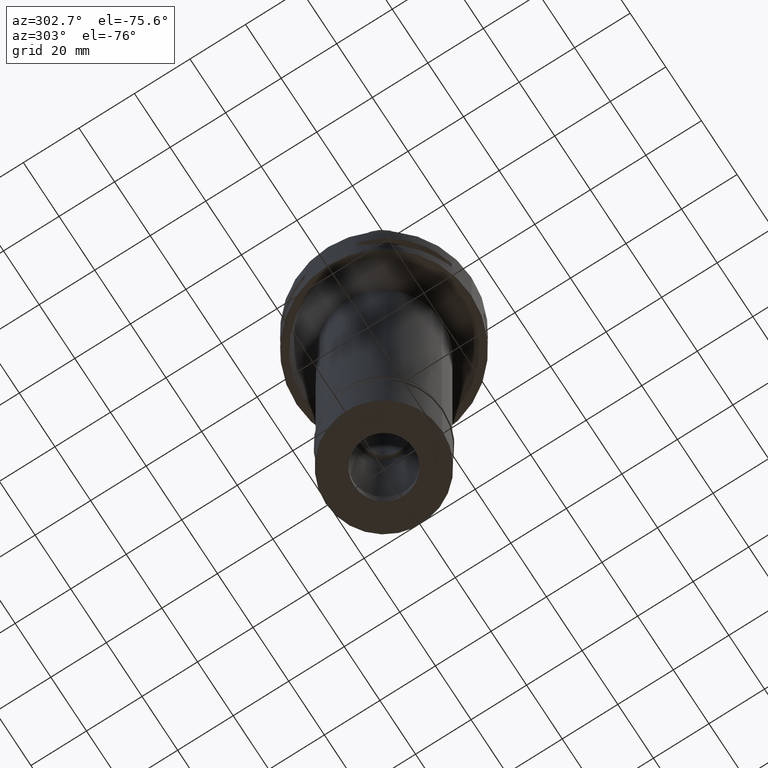
[diagram: clean part render]
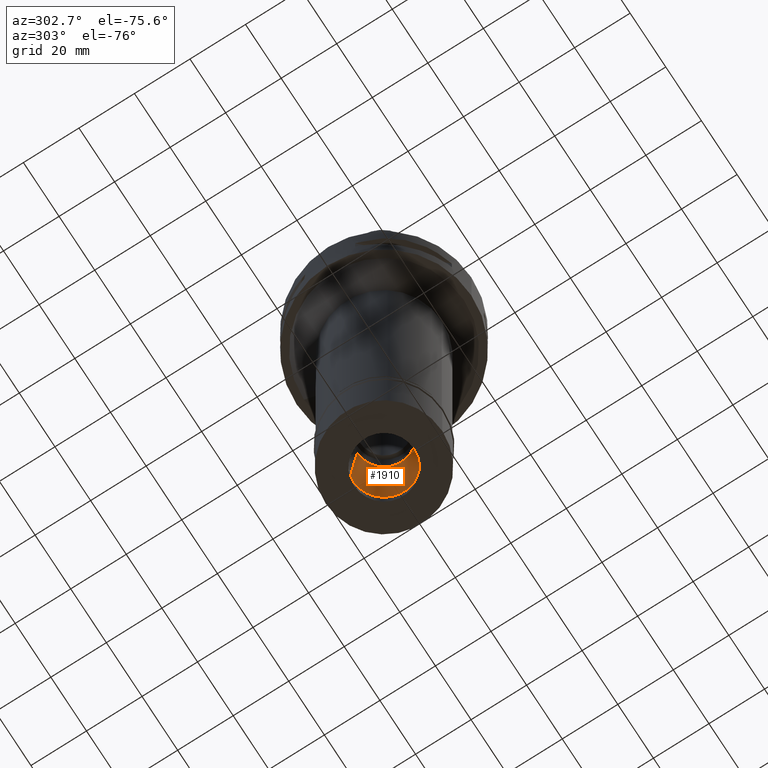
[diagram: same view with one face highlighted and labeled with its STEP entity id]
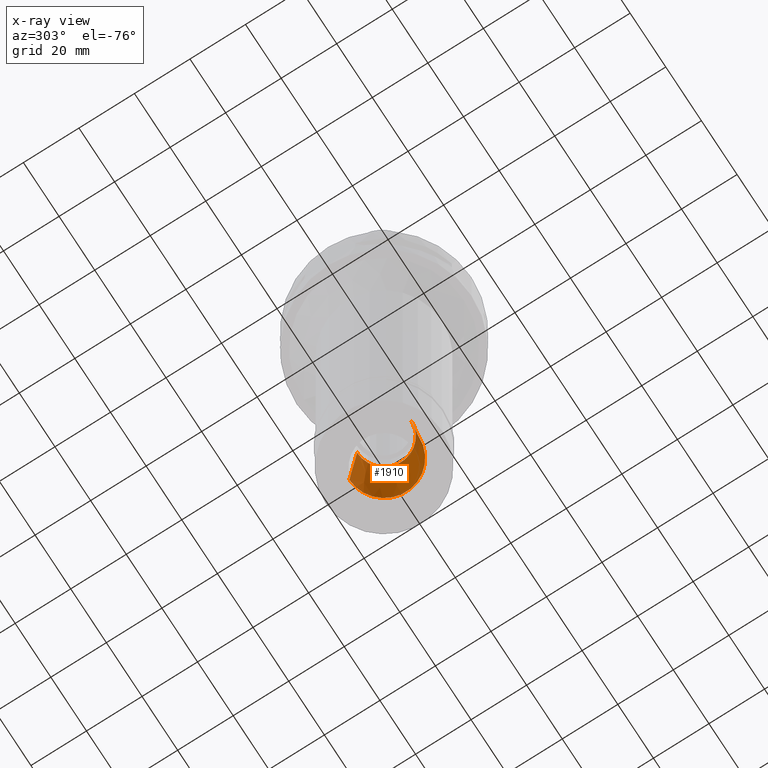
[diagram: x-ray of the same camera — body ghosted, the highlighted face saturated]
A machine part, auxiliary view. The second image highlights one B-rep face of the part: STEP entity #1910.
The next image is the same camera in x-ray: the body ghosted, the highlighted face saturated — about 3% of this face is hidden behind the body in this view.
In plain terms, the highlighted conical surface has half-angle 6 deg.
Its self-contained STEP definition (entity closure, byte-faithful):
#65 = DIRECTION ( 'NONE',  ( 0.0000000000000000000, 0.1045284632676965891, 0.9945218953682687379 ) ) ;
#82 = CIRCLE ( 'NONE', #2624, 9.662185647822997936 ) ;
#96 = CARTESIAN_POINT ( 'NONE',  ( 0.0000000000000000000, -12.50000000000000000, -154.0000000000000000 ) ) ;
#595 = ORIENTED_EDGE ( 'NONE', *, *, #3123, .F. ) ;
#597 = VERTEX_POINT ( 'NONE', #3147 ) ;
#842 = ORIENTED_EDGE ( 'NONE', *, *, #1574, .T. ) ;
#851 = LINE ( 'NONE', #96, #3506 ) ;
#974 = CARTESIAN_POINT ( 'NONE',  ( 0.0000000000000000000, 9.662185647824998114, -127.0000000000000000 ) ) ;
#985 = VERTEX_POINT ( 'NONE', #4515 ) ;
#1220 = AXIS2_PLACEMENT_3D ( 'NONE', #4819, #1786, #1718 ) ;
#1242 = ORIENTED_EDGE ( 'NONE', *, *, #1604, .T. ) ;
#1376 = DIRECTION ( 'NONE',  ( 0.0000000000000000000, 0.0000000000000000000, 1.000000000000000000 ) ) ;
#1379 = CARTESIAN_POINT ( 'NONE',  ( 0.0000000000000000000, 12.50000000000000000, -154.0000000000000000 ) ) ;
#1574 = EDGE_CURVE ( 'NONE', #985, #597, #3766, .T. ) ;
#1604 = EDGE_CURVE ( 'NONE', #3332, #2693, #82, .T. ) ;
#1651 = ORIENTED_EDGE ( 'NONE', *, *, #4166, .T. ) ;
#1682 = CONICAL_SURFACE ( 'NONE', #4384, 11.08109282390999972, 0.1047197551196402399 ) ;
#1718 = DIRECTION ( 'NONE',  ( 0.0000000000000000000, 1.000000000000000000, 0.0000000000000000000 ) ) ;
#1786 = DIRECTION ( 'NONE',  ( 0.0000000000000000000, 0.0000000000000000000, -1.000000000000000000 ) ) ;
#1910 = ADVANCED_FACE ( 'NONE', ( #2147 ), #1682, .F. ) ;
#2059 = EDGE_LOOP ( 'NONE', ( #842, #1651, #1242, #595 ) ) ;
#2147 = FACE_OUTER_BOUND ( 'NONE', #2059, .T. ) ;
#2152 = DIRECTION ( 'NONE',  ( 0.0000000000000000000, -1.000000000000000000, 0.0000000000000000000 ) ) ;
#2624 = AXIS2_PLACEMENT_3D ( 'NONE', #3296, #1376, #2152 ) ;
#2625 = CARTESIAN_POINT ( 'NONE',  ( 0.0000000000000000000, -9.662185647824998114, -127.0000000000000000 ) ) ;
#2693 = VERTEX_POINT ( 'NONE', #974 ) ;
#2848 = DIRECTION ( 'NONE',  ( 0.0000000000000000000, -1.000000000000000000, 0.0000000000000000000 ) ) ;
#3123 = EDGE_CURVE ( 'NONE', #985, #2693, #3228, .T. ) ;
#3147 = CARTESIAN_POINT ( 'NONE',  ( 0.0000000000000000000, -12.50000000000000000, -154.0000000000000000 ) ) ;
#3175 = DIRECTION ( 'NONE',  ( 0.0000000000000000000, -0.1045284632676965891, 0.9945218953682687379 ) ) ;
#3228 = LINE ( 'NONE', #1379, #3973 ) ;
#3296 = CARTESIAN_POINT ( 'NONE',  ( 0.0000000000000000000, -1.720628752802000117E-14, -127.0000000000000000 ) ) ;
#3332 = VERTEX_POINT ( 'NONE', #2625 ) ;
#3506 = VECTOR ( 'NONE', #65, 1000.000000000000227 ) ;
#3593 = DIRECTION ( 'NONE',  ( 0.0000000000000000000, 0.0000000000000000000, -1.000000000000000000 ) ) ;
#3672 = CARTESIAN_POINT ( 'NONE',  ( 0.0000000000000000000, -1.720628752802000117E-14, -140.5000000000000000 ) ) ;
#3766 = CIRCLE ( 'NONE', #1220, 12.50000000000000000 ) ;
#3973 = VECTOR ( 'NONE', #3175, 1000.000000000000227 ) ;
#4166 = EDGE_CURVE ( 'NONE', #597, #3332, #851, .T. ) ;
#4384 = AXIS2_PLACEMENT_3D ( 'NONE', #3672, #3593, #2848 ) ;
#4515 = CARTESIAN_POINT ( 'NONE',  ( 0.0000000000000000000, 12.50000000000000000, -154.0000000000000000 ) ) ;
#4819 = CARTESIAN_POINT ( 'NONE',  ( 0.0000000000000000000, -1.720628752802000117E-14, -154.0000000000000000 ) ) ;